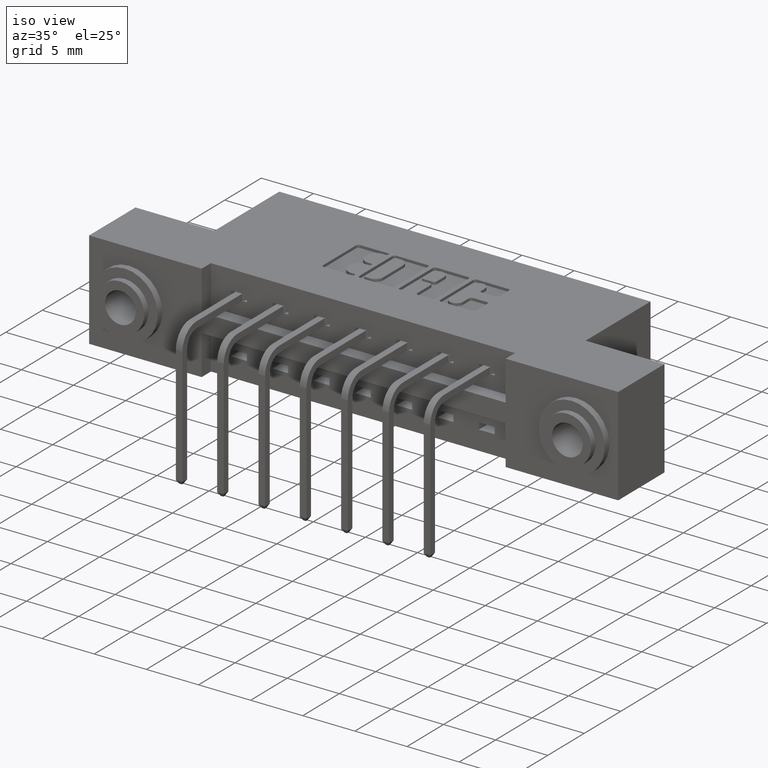
[diagram: clean part render]
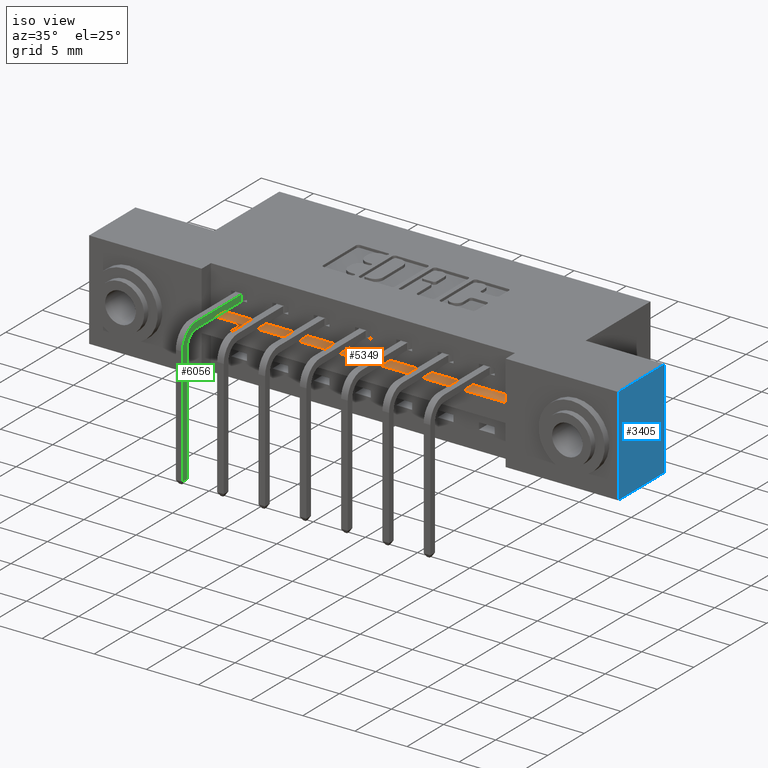
[diagram: same view with three faces highlighted in distinct colors, each labeled with its STEP entity id]
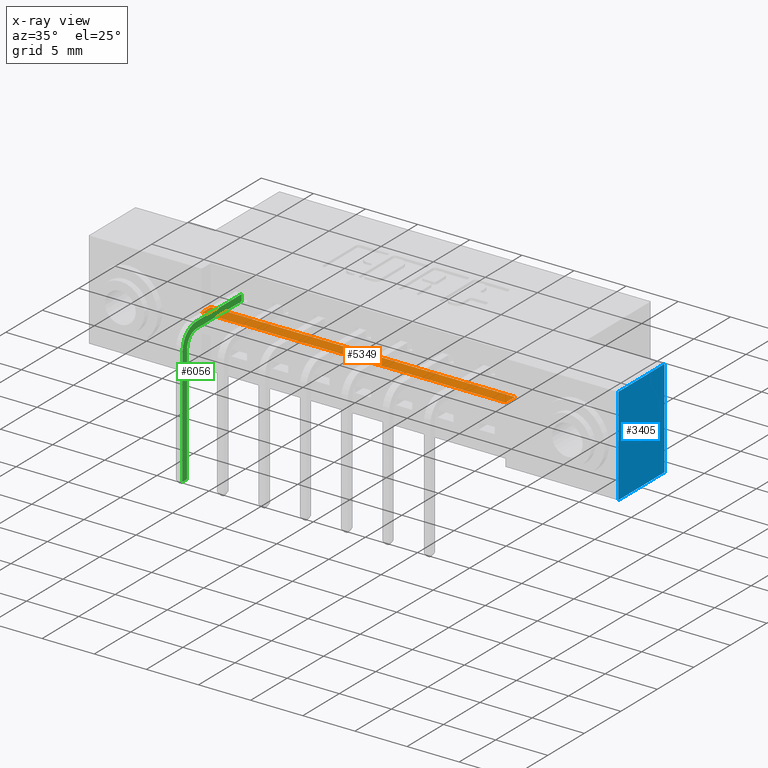
[diagram: x-ray of the same camera — body ghosted, the three highlighted faces saturated]
A machine part, iso view with three faces highlighted in distinct colors.
The next image is the same camera in x-ray (body ghosted, the three faces saturated) — at least one of them is partly hidden behind the body in this view.
Their STEP definitions:

[orange] entity #5349 — the highlighted planar face has unit normal (0, 0, -1).
#143 = CARTESIAN_POINT ( 'NONE',  ( 1.573000000000000200, 0.05000000000000000300, -0.1499999999999999900 ) ) ;
#584 = CARTESIAN_POINT ( 'NONE',  ( 1.573000000000000200, 0.05000000000000000300, -0.1499999999999999900 ) ) ;
#678 = LINE ( 'NONE', #584, #2459 ) ;
#776 = ORIENTED_EDGE ( 'NONE', *, *, #1335, .F. ) ;
#798 = CARTESIAN_POINT ( 'NONE',  ( 0.4249999999999999300, 0.0000000000000000000, -0.1499999999999999900 ) ) ;
#979 = LINE ( 'NONE', #4907, #8949 ) ;
#1022 = ORIENTED_EDGE ( 'NONE', *, *, #4360, .T. ) ;
#1335 = EDGE_CURVE ( 'NONE', #9530, #5176, #979, .T. ) ;
#2078 = EDGE_LOOP ( 'NONE', ( #6900, #7357, #776, #1022 ) ) ;
#2459 = VECTOR ( 'NONE', #5592, 39.37007874015748100 ) ;
#2702 = CARTESIAN_POINT ( 'NONE',  ( 0.4249999999999999300, 0.05000000000000000300, -0.1499999999999999900 ) ) ;
#3385 = DIRECTION ( 'NONE',  ( 1.000000000000000000, 0.0000000000000000000, 0.0000000000000000000 ) ) ;
#3986 = LINE ( 'NONE', #6098, #5273 ) ;
#4360 = EDGE_CURVE ( 'NONE', #9530, #8361, #3986, .T. ) ;
#4377 = PLANE ( 'NONE',  #8982 ) ;
#4789 = CARTESIAN_POINT ( 'NONE',  ( 1.573000000000000200, 0.0000000000000000000, -0.1499999999999999900 ) ) ;
#4907 = CARTESIAN_POINT ( 'NONE',  ( 0.4249999999999999300, 0.05000000000000000300, -0.1499999999999999900 ) ) ;
#5055 = VECTOR ( 'NONE', #3385, 39.37007874015748100 ) ;
#5176 = VERTEX_POINT ( 'NONE', #143 ) ;
#5273 = VECTOR ( 'NONE', #5472, 39.37007874015748100 ) ;
#5349 = ADVANCED_FACE ( 'NONE', ( #9814 ), #4377, .F. ) ;
#5472 = DIRECTION ( 'NONE',  ( -0.0000000000000000000, -1.000000000000000000, -0.0000000000000000000 ) ) ;
#5592 = DIRECTION ( 'NONE',  ( -0.0000000000000000000, -1.000000000000000000, -0.0000000000000000000 ) ) ;
#6098 = CARTESIAN_POINT ( 'NONE',  ( 0.4249999999999999300, 0.05000000000000000300, -0.1499999999999999900 ) ) ;
#6157 = EDGE_CURVE ( 'NONE', #8361, #10297, #10225, .T. ) ;
#6900 = ORIENTED_EDGE ( 'NONE', *, *, #6157, .T. ) ;
#7357 = ORIENTED_EDGE ( 'NONE', *, *, #10298, .F. ) ;
#8361 = VERTEX_POINT ( 'NONE', #10276 ) ;
#8949 = VECTOR ( 'NONE', #9863, 39.37007874015748100 ) ;
#8982 = AXIS2_PLACEMENT_3D ( 'NONE', #2702, #10109, #9189 ) ;
#9021 = CARTESIAN_POINT ( 'NONE',  ( 0.4249999999999999300, 0.05000000000000000300, -0.1499999999999999900 ) ) ;
#9189 = DIRECTION ( 'NONE',  ( -1.000000000000000000, 0.0000000000000000000, -0.0000000000000000000 ) ) ;
#9530 = VERTEX_POINT ( 'NONE', #9021 ) ;
#9814 = FACE_OUTER_BOUND ( 'NONE', #2078, .T. ) ;
#9863 = DIRECTION ( 'NONE',  ( 1.000000000000000000, 0.0000000000000000000, 0.0000000000000000000 ) ) ;
#10109 = DIRECTION ( 'NONE',  ( 0.0000000000000000000, 0.0000000000000000000, -1.000000000000000000 ) ) ;
#10225 = LINE ( 'NONE', #798, #5055 ) ;
#10276 = CARTESIAN_POINT ( 'NONE',  ( 0.4249999999999999300, 0.0000000000000000000, -0.1499999999999999900 ) ) ;
#10297 = VERTEX_POINT ( 'NONE', #4789 ) ;
#10298 = EDGE_CURVE ( 'NONE', #5176, #10297, #678, .T. ) ;

[blue] entity #3405 — the highlighted planar face has unit normal (-1, 0, 0).
#92 = DIRECTION ( 'NONE',  ( 0.0000000000000000000, 0.0000000000000000000, -1.000000000000000000 ) ) ;
#126 = CARTESIAN_POINT ( 'NONE',  ( 1.998000000000000000, 0.2500000000000001100, -0.3700000000000000000 ) ) ;
#251 = VERTEX_POINT ( 'NONE', #4033 ) ;
#279 = CARTESIAN_POINT ( 'NONE',  ( 1.998000000000000000, 0.5999999999999999800, 0.0000000000000000000 ) ) ;
#952 = LINE ( 'NONE', #9760, #4479 ) ;
#1293 = VERTEX_POINT ( 'NONE', #126 ) ;
#1427 = CARTESIAN_POINT ( 'NONE',  ( 1.998000000000000000, 0.5999999999999999800, 0.0000000000000000000 ) ) ;
#1556 = CARTESIAN_POINT ( 'NONE',  ( 1.998000000000000000, 0.0000000000000000000, 0.0000000000000000000 ) ) ;
#2043 = VERTEX_POINT ( 'NONE', #8511 ) ;
#2181 = DIRECTION ( 'NONE',  ( -0.0000000000000000000, -1.000000000000000000, -0.0000000000000000000 ) ) ;
#2741 = ORIENTED_EDGE ( 'NONE', *, *, #4785, .F. ) ;
#3405 = ADVANCED_FACE ( 'NONE', ( #5163 ), #6195, .F. ) ;
#3838 = ORIENTED_EDGE ( 'NONE', *, *, #5887, .T. ) ;
#4033 = CARTESIAN_POINT ( 'NONE',  ( 1.998000000000000000, 0.2500000000000000000, 0.0000000000000000000 ) ) ;
#4464 = LINE ( 'NONE', #279, #6118 ) ;
#4479 = VECTOR ( 'NONE', #92, 39.37007874015748100 ) ;
#4785 = EDGE_CURVE ( 'NONE', #1293, #8071, #7299, .T. ) ;
#5059 = VECTOR ( 'NONE', #5604, 39.37007874015748100 ) ;
#5163 = FACE_OUTER_BOUND ( 'NONE', #10241, .T. ) ;
#5604 = DIRECTION ( 'NONE',  ( 0.0000000000000000000, 0.0000000000000000000, -1.000000000000000000 ) ) ;
#5677 = ORIENTED_EDGE ( 'NONE', *, *, #6850, .T. ) ;
#5769 = VECTOR ( 'NONE', #2181, 39.37007874015748100 ) ;
#5887 = EDGE_CURVE ( 'NONE', #251, #2043, #4464, .T. ) ;
#6118 = VECTOR ( 'NONE', #9221, 39.37007874015748100 ) ;
#6195 = PLANE ( 'NONE',  #9835 ) ;
#6584 = LINE ( 'NONE', #1556, #5059 ) ;
#6850 = EDGE_CURVE ( 'NONE', #2043, #8071, #6584, .T. ) ;
#7032 = CARTESIAN_POINT ( 'NONE',  ( 1.998000000000000000, 0.5999999999999999800, -0.3700000000000000000 ) ) ;
#7044 = DIRECTION ( 'NONE',  ( 0.0000000000000000000, 0.0000000000000000000, 1.000000000000000000 ) ) ;
#7299 = LINE ( 'NONE', #7032, #5769 ) ;
#7740 = ORIENTED_EDGE ( 'NONE', *, *, #9070, .F. ) ;
#8071 = VERTEX_POINT ( 'NONE', #9153 ) ;
#8511 = CARTESIAN_POINT ( 'NONE',  ( 1.998000000000000000, 0.0000000000000000000, 0.0000000000000000000 ) ) ;
#9070 = EDGE_CURVE ( 'NONE', #251, #1293, #952, .T. ) ;
#9153 = CARTESIAN_POINT ( 'NONE',  ( 1.998000000000000000, 0.0000000000000000000, -0.3700000000000000000 ) ) ;
#9221 = DIRECTION ( 'NONE',  ( -0.0000000000000000000, -1.000000000000000000, -0.0000000000000000000 ) ) ;
#9485 = DIRECTION ( 'NONE',  ( -1.000000000000000000, 0.0000000000000000000, 0.0000000000000000000 ) ) ;
#9760 = CARTESIAN_POINT ( 'NONE',  ( 1.998000000000000000, 0.2500000000000000000, 0.0000000000000000000 ) ) ;
#9835 = AXIS2_PLACEMENT_3D ( 'NONE', #1427, #9485, #7044 ) ;
#10241 = EDGE_LOOP ( 'NONE', ( #2741, #7740, #3838, #5677 ) ) ;

[green] entity #6056 — the highlighted planar face has unit normal (1, 0, -0).
#249 = ORIENTED_EDGE ( 'NONE', *, *, #6004, .F. ) ;
#311 = LINE ( 'NONE', #7123, #9430 ) ;
#348 = CARTESIAN_POINT ( 'NONE',  ( 0.9057132034352642900, 0.5319999999998661400, 0.01250000000002561400 ) ) ;
#358 = CIRCLE ( 'NONE', #9517, 0.07500000000000002500 ) ;
#413 = LINE ( 'NONE', #2502, #9792 ) ;
#726 = VERTEX_POINT ( 'NONE', #9597 ) ;
#809 = VERTEX_POINT ( 'NONE', #8352 ) ;
#865 = ORIENTED_EDGE ( 'NONE', *, *, #2020, .T. ) ;
#944 = FACE_OUTER_BOUND ( 'NONE', #5897, .T. ) ;
#1386 = VERTEX_POINT ( 'NONE', #3549 ) ;
#1458 = DIRECTION ( 'NONE',  ( 1.000000000000000000, 0.0000000000000000000, 0.0000000000000000000 ) ) ;
#1624 = ORIENTED_EDGE ( 'NONE', *, *, #2405, .F. ) ;
#1764 = CARTESIAN_POINT ( 'NONE',  ( 0.9307132034352640900, 0.08749999999997509800, 0.01250000000126218500 ) ) ;
#1842 = VERTEX_POINT ( 'NONE', #2307 ) ;
#2020 = EDGE_CURVE ( 'NONE', #6094, #8076, #311, .T. ) ;
#2122 = CARTESIAN_POINT ( 'NONE',  ( 0.8557132034352642500, 0.08749999999999978600, 0.01250000000126218500 ) ) ;
#2252 = AXIS2_PLACEMENT_3D ( 'NONE', #5500, #10356, #3094 ) ;
#2307 = CARTESIAN_POINT ( 'NONE',  ( 0.8557132034354718600, 0.01249999999995953800, 0.01250000000126218500 ) ) ;
#2405 = EDGE_CURVE ( 'NONE', #809, #4666, #3199, .T. ) ;
#2457 = AXIS2_PLACEMENT_3D ( 'NONE', #2122, #7035, #8603 ) ;
#2502 = CARTESIAN_POINT ( 'NONE',  ( 0.5802132034353879600, 0.01249999999997254900, 0.01249999999999993500 ) ) ;
#2832 = VECTOR ( 'NONE', #9063, 39.37007874015748100 ) ;
#3094 = DIRECTION ( 'NONE',  ( 1.000000000000000000, -1.352300162707910000E-020, 2.655066634207303500E-024 ) ) ;
#3096 = VECTOR ( 'NONE', #4519, 39.37007874015748100 ) ;
#3199 = LINE ( 'NONE', #9652, #10416 ) ;
#3299 = DIRECTION ( 'NONE',  ( -1.000000000000000000, 1.317099156179205800E-016, -2.655066637566880700E-024 ) ) ;
#3549 = CARTESIAN_POINT ( 'NONE',  ( 0.9307132034352644200, 0.5319999999999024400, 0.01250000000002561400 ) ) ;
#3590 = CIRCLE ( 'NONE', #2457, 0.05000000000000014800 ) ;
#3715 = VECTOR ( 'NONE', #9633, 39.37007874015748100 ) ;
#3765 = ORIENTED_EDGE ( 'NONE', *, *, #9127, .F. ) ;
#3893 = DIRECTION ( 'NONE',  ( -2.655066634208224000E-024, -2.136740202317841400E-025, -1.000000000000000000 ) ) ;
#3922 = CARTESIAN_POINT ( 'NONE',  ( 0.6111517891031065200, 0.03749999999999993600, 0.01249999999999993500 ) ) ;
#4094 = LINE ( 'NONE', #8566, #3096 ) ;
#4519 = DIRECTION ( 'NONE',  ( -1.000000000000000000, 1.352300162707910000E-020, -2.655066634207303500E-024 ) ) ;
#4666 = VERTEX_POINT ( 'NONE', #348 ) ;
#4738 = LINE ( 'NONE', #1764, #2832 ) ;
#5035 = CARTESIAN_POINT ( 'NONE',  ( 0.6111517891031481600, 0.01249999999995567000, 0.01249999999999993500 ) ) ;
#5114 = DIRECTION ( 'NONE',  ( 1.352300162707910000E-020, -1.000000000000000000, -2.136740202317841400E-025 ) ) ;
#5352 = ORIENTED_EDGE ( 'NONE', *, *, #7373, .F. ) ;
#5500 = CARTESIAN_POINT ( 'NONE',  ( 0.8557132034352642500, 0.08749999999999978600, 0.01250000000126218500 ) ) ;
#5603 = DIRECTION ( 'NONE',  ( -2.985761452597817700E-016, 1.000000000000000000, 2.136075093967127000E-025 ) ) ;
#5715 = CARTESIAN_POINT ( 'NONE',  ( 0.9307132034352640900, 0.08749999999997512500, 0.01250000000126218500 ) ) ;
#5891 = LINE ( 'NONE', #8835, #3715 ) ;
#5897 = EDGE_LOOP ( 'NONE', ( #3765, #6345, #1624, #249, #6336, #865, #9855, #5352 ) ) ;
#6004 = EDGE_CURVE ( 'NONE', #726, #809, #3590, .T. ) ;
#6056 = ADVANCED_FACE ( 'NONE', ( #944 ), #6972, .T. ) ;
#6094 = VERTEX_POINT ( 'NONE', #3922 ) ;
#6336 = ORIENTED_EDGE ( 'NONE', *, *, #9503, .F. ) ;
#6345 = ORIENTED_EDGE ( 'NONE', *, *, #8260, .T. ) ;
#6972 = PLANE ( 'NONE',  #2252 ) ;
#7035 = DIRECTION ( 'NONE',  ( 2.655066634208224000E-024, 2.136740202317841400E-025, 1.000000000000000000 ) ) ;
#7123 = CARTESIAN_POINT ( 'NONE',  ( 0.6111517891031481600, 0.01249999999995567000, 0.01249999999999993500 ) ) ;
#7373 = EDGE_CURVE ( 'NONE', #7508, #1842, #358, .T. ) ;
#7508 = VERTEX_POINT ( 'NONE', #5715 ) ;
#8076 = VERTEX_POINT ( 'NONE', #5035 ) ;
#8260 = EDGE_CURVE ( 'NONE', #1386, #4666, #4094, .T. ) ;
#8352 = CARTESIAN_POINT ( 'NONE',  ( 0.9057132034352642900, 0.08749999999999981400, 0.01250000000126218500 ) ) ;
#8566 = CARTESIAN_POINT ( 'NONE',  ( 0.9057132034352642900, 0.5319999999998661400, 0.01250000000002561400 ) ) ;
#8603 = DIRECTION ( 'NONE',  ( 1.000000000000000000, 0.0000000000000000000, 0.0000000000000000000 ) ) ;
#8835 = CARTESIAN_POINT ( 'NONE',  ( 0.5802132034353879600, 0.03749999999999027000, 0.01249999999999993500 ) ) ;
#9063 = DIRECTION ( 'NONE',  ( -2.985490992569969100E-016, -1.000000000000000000, -2.136740202317841400E-025 ) ) ;
#9127 = EDGE_CURVE ( 'NONE', #1386, #7508, #4738, .T. ) ;
#9430 = VECTOR ( 'NONE', #5114, 39.37007874015748100 ) ;
#9503 = EDGE_CURVE ( 'NONE', #6094, #726, #5891, .T. ) ;
#9517 = AXIS2_PLACEMENT_3D ( 'NONE', #10425, #3893, #1458 ) ;
#9597 = CARTESIAN_POINT ( 'NONE',  ( 0.8557132034354716400, 0.03749999999999952000, 0.01250000000126218500 ) ) ;
#9633 = DIRECTION ( 'NONE',  ( 1.000000000000000000, -1.766294553387771000E-015, 2.655066637211905200E-024 ) ) ;
#9652 = CARTESIAN_POINT ( 'NONE',  ( 0.9057132034352642900, 0.08749999999999981400, 0.01250000000126218500 ) ) ;
#9792 = VECTOR ( 'NONE', #3299, 39.37007874015748100 ) ;
#9855 = ORIENTED_EDGE ( 'NONE', *, *, #10309, .F. ) ;
#10309 = EDGE_CURVE ( 'NONE', #1842, #8076, #413, .T. ) ;
#10356 = DIRECTION ( 'NONE',  ( -2.655066634207303500E-024, 2.136740202317841400E-025, 1.000000000000000000 ) ) ;
#10416 = VECTOR ( 'NONE', #5603, 39.37007874015748100 ) ;
#10425 = CARTESIAN_POINT ( 'NONE',  ( 0.8557132034352642500, 0.08749999999999978600, 0.01250000000126218500 ) ) ;